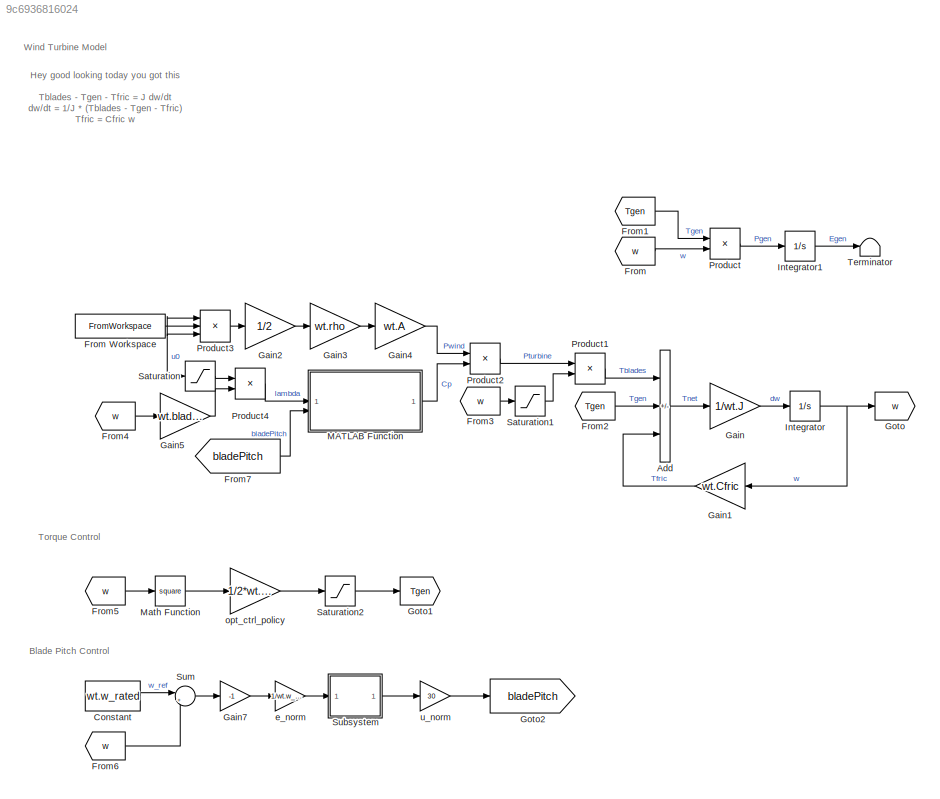
MODEL slx_9c6936816024
KIND model
CONFIG AbsTol = auto
CONFIG EnableMultiTasking = off
CONFIG FixedStep = auto
CONFIG MaxStep = simu.maxStepSize
CONFIG MinStep = auto
CONFIG RelTol = 1e-3
CONFIG SampleTimeConstraint = Unconstrained
CONFIG SolverName = ode45
CONFIG StartTime = 0.0
CONFIG StopTime = simu.endTime
BLOCK [Sum] Add
  IconShape = rectangular
  Inputs = +--
BLOCK [Constant] Constant
  Value = wt.w_rated
BLOCK [From] From
  GotoTag = w
BLOCK [FromWorkspace] From Workspace
  VariableName = windspeedtimeseries
BLOCK [From] From1
  GotoTag = Tgen
BLOCK [From] From2
  GotoTag = Tgen
BLOCK [From] From3
  GotoTag = w
BLOCK [From] From4
  GotoTag = w
BLOCK [From] From5
  GotoTag = w
BLOCK [From] From6
  GotoTag = w
BLOCK [From] From7
  GotoTag = bladePitch
BLOCK [Gain] Gain
  Gain = 1/wt.J
BLOCK [Gain] Gain1
  Gain = wt.Cfric
BLOCK [Gain] Gain2
  Gain = 1/2
BLOCK [Gain] Gain3
  Gain = wt.rho
BLOCK [Gain] Gain4
  Gain = wt.A
BLOCK [Gain] Gain5
  Gain = wt.bladeLength
BLOCK [Gain] Gain7
  Gain = -1
BLOCK [Goto] Goto
  GotoTag = w
BLOCK [Goto] Goto1
  GotoTag = Tgen
BLOCK [Goto] Goto2
  GotoTag = bladePitch
BLOCK [Integrator] Integrator
  InitialCondition = wt.w_0
BLOCK [Integrator] Integrator1
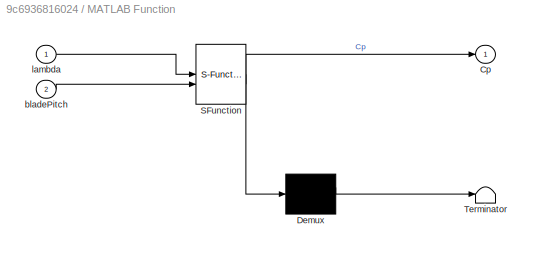
BLOCK [SubSystem] MATLAB Function
  ErrorFcn = Stateflow.Translate.translate
  PermitHierarchicalResolution = ExplicitOnly
  SFBlockType = MATLAB Function
  TreatAsAtomicUnit = on
BLOCK [Demux] MATLAB Function/ Demux 
  Outputs = 1
BLOCK [S-Function] MATLAB Function/ SFunction 
  EnableBusSupport = on
  FunctionName = sf_sfun
  PortCounts = [2 2]
  SFcnIsStateOwnerBlock = off
  SFunctionDeploymentMode = off
  Tag = Stateflow S-Function 2
BLOCK [Terminator] MATLAB Function/ Terminator 
BLOCK [Outport] MATLAB Function/Cp
BLOCK [Inport] MATLAB Function/bladePitch
  Port = 2
BLOCK [Inport] MATLAB Function/lambda
BLOCK [Math] Math Function
  Operator = square
BLOCK [Product] Product
BLOCK [Product] Product1
  Inputs = */
BLOCK [Product] Product2
BLOCK [Product] Product3
  Inputs = 3
BLOCK [Product] Product4
  Inputs = /*
BLOCK [Saturate] Saturation
  LowerLimit = 1e-3
  UpperLimit = inf
BLOCK [Saturate] Saturation1
  LowerLimit = 1e-3
  UpperLimit = inf
BLOCK [Saturate] Saturation2
  LowerLimit = 0
  UpperLimit = wt.Tgen_rated
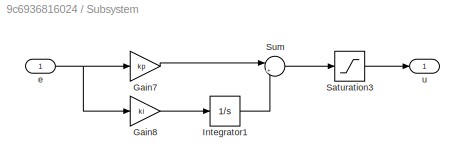
BLOCK [SubSystem] Subsystem
BLOCK [Gain] Subsystem/Gain7
  Gain = kp
BLOCK [Gain] Subsystem/Gain8
  Gain = ki
BLOCK [Integrator] Subsystem/Integrator1
  LimitOutput = on
  LowerSaturationLimit = lowerLimit
  UpperSaturationLimit = upperLimit
BLOCK [Saturate] Subsystem/Saturation3
  LowerLimit = lowerLimit
  NameLocation = left
  UpperLimit = upperLimit
BLOCK [Sum] Subsystem/Sum
  Inputs = |++
BLOCK [Inport] Subsystem/e
BLOCK [Outport] Subsystem/u
BLOCK [Sum] Sum
  Inputs = |+-
BLOCK [Terminator] Terminator
BLOCK [Gain] e_norm
  Gain = 1/wt.w_rated
BLOCK [Gain] opt_ctrl_policy
  Gain = 1/2*wt.rho*wt.A*wt.Cp_opt/wt.lambda_opt^3*wt.bladeLength^3
BLOCK [Gain] u_norm
  Gain = 30
ANNOTATION (root): Blade Pitch Control
ANNOTATION (root): Hey good looking today you got this Tblades - Tgen - Tfric = J dw/dt dw/dt = 1/J * (Tblades - Tgen - Tfric) Tfric = Cfric w Pgen = Tgen w Pturbine = Tblades w Tblades = Pturbine/w Pturbine = Pwind Cp Pwind = 1/2 rho A u0^3 lambda = w bladeLength / u0 Tgen = 1/2 rho A Cp_opt/lambda_opt^3 bladeLength^3 w^2
ANNOTATION (root): Torque Control
ANNOTATION (root): Wind Turbine Model
LINE Add:1 -> Gain:1
LINE Constant:1 -> Sum:1
NET From Workspace:1 -> Product3:1, Product3:2, Product3:3, Saturation:1
LINE From1:1 -> Product:1
LINE From2:1 -> Add:2
LINE From3:1 -> Saturation1:1
LINE From4:1 -> Gain5:1
LINE From5:1 -> Math Function:1
LINE From6:1 -> Sum:2
LINE From7:1 -> MATLAB Function:2
LINE From:1 -> Product:2
LINE Gain1:1 -> Add:3
LINE Gain2:1 -> Gain3:1
LINE Gain3:1 -> Gain4:1
LINE Gain4:1 -> Product2:1
LINE Gain5:1 -> Product4:2
LINE Gain7:1 -> e_norm:1
LINE Gain:1 -> Integrator:1
LINE Integrator1:1 -> Terminator:1
NET Integrator:1 -> Gain1:1, Goto:1
LINE MATLAB Function:1 -> Product2:2
LINE Math Function:1 -> opt_ctrl_policy:1
LINE Product1:1 -> Add:1
LINE Product2:1 -> Product1:1
LINE Product3:1 -> Gain2:1
LINE Product4:1 -> MATLAB Function:1
LINE Product:1 -> Integrator1:1
LINE Saturation1:1 -> Product1:2
LINE Saturation2:1 -> Goto1:1
LINE Saturation:1 -> Product4:1
LINE Subsystem/Gain7:1 -> Subsystem/Sum:1
LINE Subsystem/Gain8:1 -> Subsystem/Integrator1:1
LINE Subsystem/Integrator1:1 -> Subsystem/Sum:2
LINE Subsystem/Saturation3:1 -> Subsystem/u:1
LINE Subsystem/Sum:1 -> Subsystem/Saturation3:1
NET Subsystem/e:1 -> Subsystem/Gain7:1, Subsystem/Gain8:1
LINE Subsystem:1 -> u_norm:1
LINE Sum:1 -> Gain7:1
LINE e_norm:1 -> Subsystem:1
LINE opt_ctrl_policy:1 -> Saturation2:1
LINE u_norm:1 -> Goto2:1
note: NET lines group one-source signal fan-out (src -> all destinations, sorted); 1:1 wires keep LINE
CHART MATLAB Function states=1 transitions=1
  STATE_LABEL 'eML_blk_kernel()'
  STATE_LABEL 'SCRIPT:\nfunction Cp = fcn(lambda,bladePitch)\n\n% https://www.mathworks.com/help/physmod/sps/powersys/ref/windturbine.html\n\nc = [...\n    0.5176 ...\n    116 ...\n    0.4 ...\n    5 ...\n    21 ...\n    0.0068];\n\nif (lambda+0.08*bladePitch) == 0\n    lambda = 1e-3;\nend\n\nlambdaai = 1/( 1/(lambda+0.08*bladePitch) - 0.035/(bladePitch^3+1) );\n\nCp = c(1)*(c(2)/lambdaai-c(3)*bladePitch-c(4))*exp(-c(5)/lambdaai) ...<+14ch>'
CHART  states=0 transitions=0
